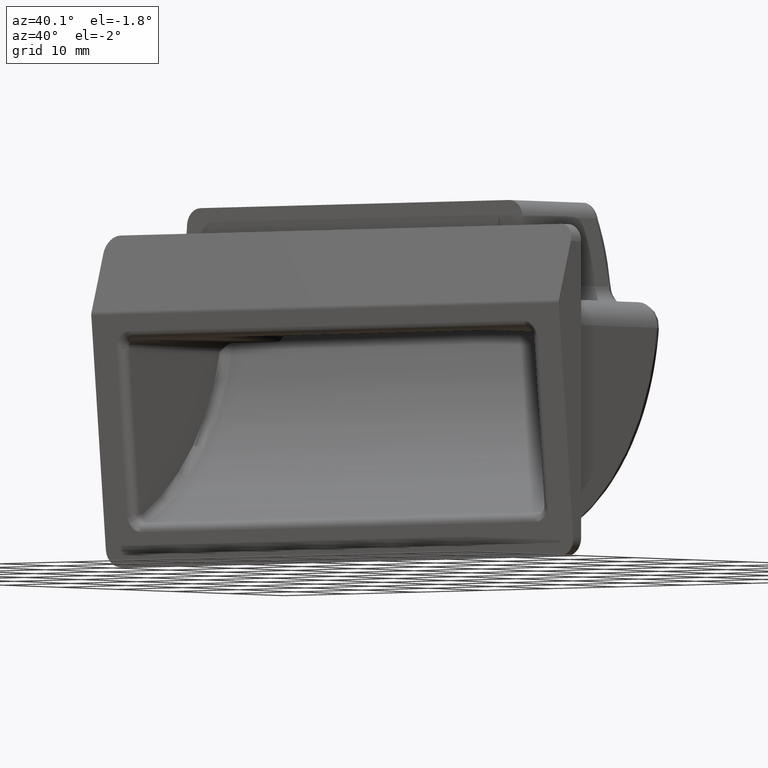
[diagram: clean part render]
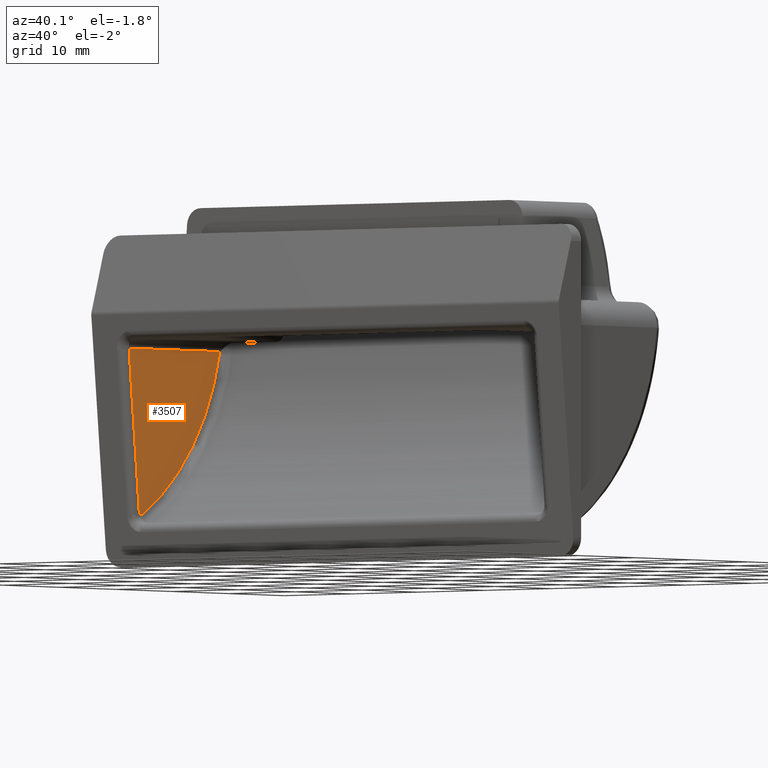
[diagram: same view with one face highlighted and labeled with its STEP entity id]
A machine part, auxiliary view. The second image highlights one B-rep face of the part: STEP entity #3507.
In plain terms, the highlighted planar face has unit normal (-1, 0, 0).
Its self-contained STEP definition (entity closure, byte-faithful):
#116 = ORIENTED_EDGE ( 'NONE', *, *, #152, .T. ) ;
#144 = FACE_OUTER_BOUND ( 'NONE', #2648, .T. ) ;
#152 = EDGE_CURVE ( 'NONE', #3499, #922, #1271, .T. ) ;
#298 = DIRECTION ( 'NONE',  ( -1.000000000000000000, 0.0000000000000000000, 0.0000000000000000000 ) ) ;
#363 = VERTEX_POINT ( 'NONE', #2925 ) ;
#401 = ORIENTED_EDGE ( 'NONE', *, *, #3195, .T. ) ;
#457 = AXIS2_PLACEMENT_3D ( 'NONE', #1734, #298, #2305 ) ;
#477 = CARTESIAN_POINT ( 'NONE',  ( -30.50000000000000000, -2.623889013683059700, 5.250000000000000000 ) ) ;
#514 = VECTOR ( 'NONE', #2095, 1000.000000000000000 ) ;
#774 = DIRECTION ( 'NONE',  ( 1.000000000000000000, -0.0000000000000000000, -0.0000000000000000000 ) ) ;
#922 = VERTEX_POINT ( 'NONE', #2638 ) ;
#941 = CARTESIAN_POINT ( 'NONE',  ( -30.50000000000000000, 0.0000000000000000000, -13.75000000000000000 ) ) ;
#1057 = CIRCLE ( 'NONE', #2958, 28.32816273254529800 ) ;
#1142 = EDGE_CURVE ( 'NONE', #1660, #3499, #1468, .T. ) ;
#1254 = ORIENTED_EDGE ( 'NONE', *, *, #1142, .T. ) ;
#1271 = LINE ( 'NONE', #941, #514 ) ;
#1446 = CARTESIAN_POINT ( 'NONE',  ( -30.50000000000000000, -0.7894062550623161000, -13.75000000000000000 ) ) ;
#1468 = LINE ( 'NONE', #2624, #3671 ) ;
#1660 = VERTEX_POINT ( 'NONE', #477 ) ;
#1734 = CARTESIAN_POINT ( 'NONE',  ( -30.50000000000000000, 0.0000000000000000000, 0.0000000000000000000 ) ) ;
#1892 = VECTOR ( 'NONE', #1895, 1000.000000000000000 ) ;
#1895 = DIRECTION ( 'NONE',  ( 0.0000000000000000000, -1.000000000000000000, 0.0000000000000000000 ) ) ;
#2019 = DIRECTION ( 'NONE',  ( 0.0000000000000000000, 0.09610480746658905900, -0.9953712201896385300 ) ) ;
#2095 = DIRECTION ( 'NONE',  ( 0.0000000000000000000, 1.000000000000000000, 0.0000000000000000000 ) ) ;
#2174 = EDGE_CURVE ( 'NONE', #363, #1660, #2635, .T. ) ;
#2305 = DIRECTION ( 'NONE',  ( 0.0000000000000000000, 1.000000000000000000, 0.0000000000000000000 ) ) ;
#2476 = CARTESIAN_POINT ( 'NONE',  ( -30.50000000000000000, -14.24241057784380100, 10.88776258176182000 ) ) ;
#2624 = CARTESIAN_POINT ( 'NONE',  ( -30.50000000000000000, -0.7021336157832250800, -14.65389519253330000 ) ) ;
#2635 = LINE ( 'NONE', #3291, #1892 ) ;
#2638 = CARTESIAN_POINT ( 'NONE',  ( -30.50000000000000000, -0.2615143702929420000, -13.75000000000000000 ) ) ;
#2648 = EDGE_LOOP ( 'NONE', ( #401, #2844, #1254, #116 ) ) ;
#2744 = DIRECTION ( 'NONE',  ( 0.0000000000000000000, -1.775864579651378700E-015, 1.000000000000000000 ) ) ;
#2844 = ORIENTED_EDGE ( 'NONE', *, *, #2174, .T. ) ;
#2925 = CARTESIAN_POINT ( 'NONE',  ( -30.50000000000000000, 13.51908140067302200, 5.250000000000000000 ) ) ;
#2958 = AXIS2_PLACEMENT_3D ( 'NONE', #2476, #774, #2744 ) ;
#3195 = EDGE_CURVE ( 'NONE', #922, #363, #1057, .T. ) ;
#3291 = CARTESIAN_POINT ( 'NONE',  ( -30.50000000000000000, 0.0000000000000000000, 5.250000000000000000 ) ) ;
#3430 = PLANE ( 'NONE',  #457 ) ;
#3499 = VERTEX_POINT ( 'NONE', #1446 ) ;
#3507 = ADVANCED_FACE ( 'NONE', ( #144 ), #3430, .F. ) ;
#3671 = VECTOR ( 'NONE', #2019, 1000.000000000000000 ) ;